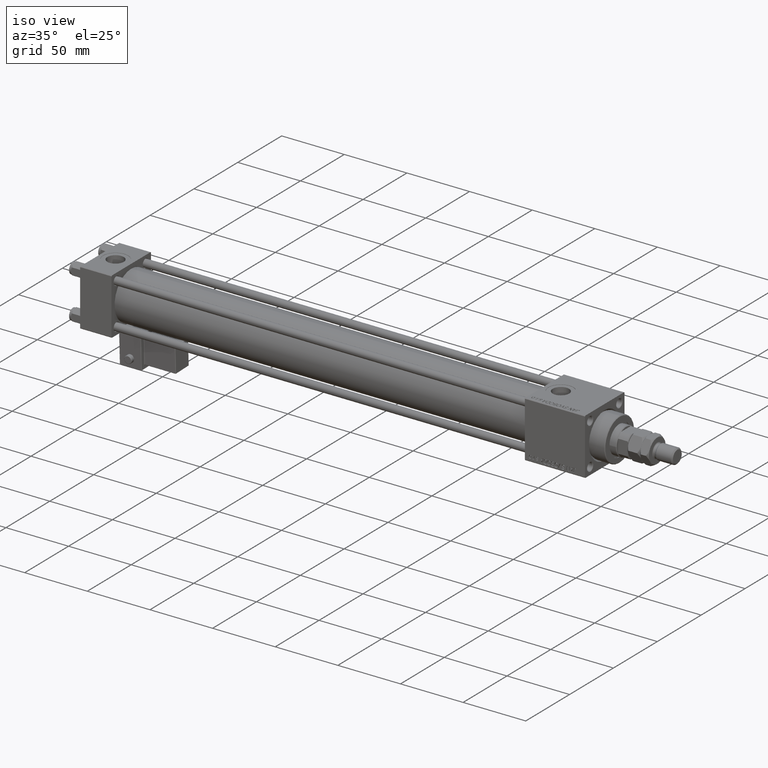
[diagram: clean part render]
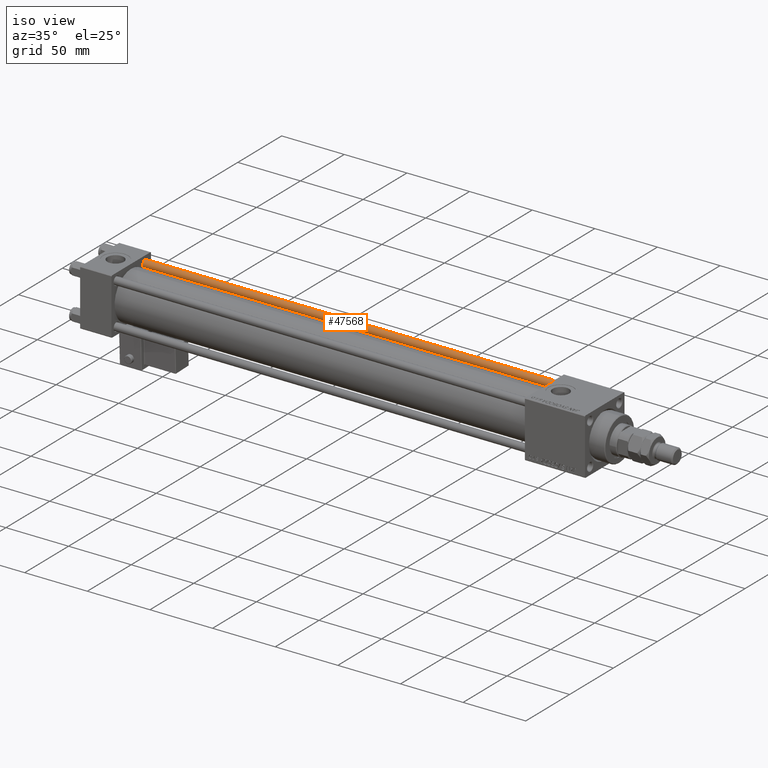
[diagram: same view with one face highlighted and labeled with its STEP entity id]
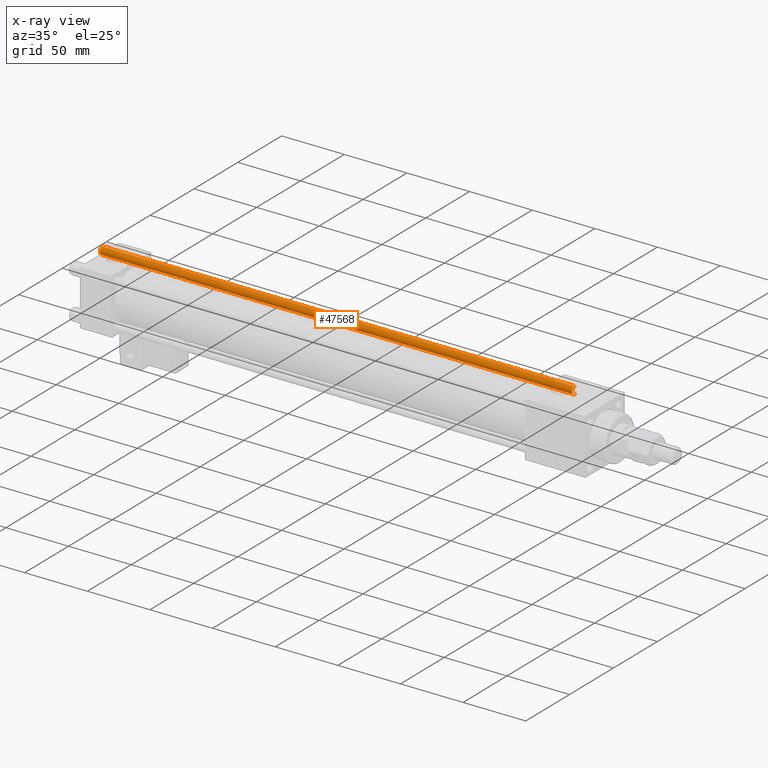
[diagram: x-ray of the same camera — body ghosted, the highlighted face saturated]
A machine part, iso view. The second image highlights one B-rep face of the part: STEP entity #47568.
The next image is the same camera in x-ray: the body ghosted, the highlighted face saturated — about 0% of this face is hidden behind the body in this view.
In plain terms, the highlighted cylindrical surface (edge-blend (fillet) strip) has radius 3 mm, axis along (-1, 0, 0).
Its self-contained STEP definition (entity closure, byte-faithful):
#1000 = EDGE_CURVE ( 'NONE', #7204, #50760, #46550, .T. ) ;
#6127 = CARTESIAN_POINT ( 'NONE',  ( 3.000000000000000444, 3.673940397442060361E-16, 0.5000000000000004441 ) ) ;
#6287 = DIRECTION ( 'NONE',  ( 1.000000000000000000, 0.000000000000000000, 0.000000000000000000 ) ) ;
#6753 = CARTESIAN_POINT ( 'NONE',  ( 0.000000000000000000, 0.000000000000000000, 378.0000000000000000 ) ) ;
#6938 = DIRECTION ( 'NONE',  ( 0.000000000000000000, 0.000000000000000000, -1.000000000000000000 ) ) ;
#7204 = VERTEX_POINT ( 'NONE', #51707 ) ;
#8622 = CARTESIAN_POINT ( 'NONE',  ( 3.000000000000000444, 3.673940397442060361E-16, 378.0000000000000000 ) ) ;
#11258 = VERTEX_POINT ( 'NONE', #19896 ) ;
#14582 = ORIENTED_EDGE ( 'NONE', *, *, #50864, .F. ) ;
#16534 = EDGE_LOOP ( 'NONE', ( #14582, #21054, #43148, #27705 ) ) ;
#17087 = LINE ( 'NONE', #8622, #51658 ) ;
#19896 = CARTESIAN_POINT ( 'NONE',  ( 3.000000000000000444, 3.673940397442060361E-16, 377.5000000000000000 ) ) ;
#21054 = ORIENTED_EDGE ( 'NONE', *, *, #50012, .T. ) ;
#23098 = DIRECTION ( 'NONE',  ( -1.000000000000000000, 0.000000000000000000, 0.000000000000000000 ) ) ;
#23179 = DIRECTION ( 'NONE',  ( -0.000000000000000000, -0.000000000000000000, 1.000000000000000000 ) ) ;
#25881 = AXIS2_PLACEMENT_3D ( 'NONE', #31636, #23179, #6287 ) ;
#27318 = FACE_OUTER_BOUND ( 'NONE', #16534, .T. ) ;
#27705 = ORIENTED_EDGE ( 'NONE', *, *, #1000, .T. ) ;
#31636 = CARTESIAN_POINT ( 'NONE',  ( 0.000000000000000000, 0.000000000000000000, 0.5000000000000004441 ) ) ;
#32020 = CARTESIAN_POINT ( 'NONE',  ( 0.000000000000000000, 0.000000000000000000, 377.5000000000000000 ) ) ;
#32826 = VERTEX_POINT ( 'NONE', #40720 ) ;
#35907 = EDGE_CURVE ( 'NONE', #32826, #7204, #47847, .T. ) ;
#36319 = AXIS2_PLACEMENT_3D ( 'NONE', #32020, #6938, #37054 ) ;
#37054 = DIRECTION ( 'NONE',  ( 1.000000000000000000, 0.000000000000000000, 0.000000000000000000 ) ) ;
#38486 = VECTOR ( 'NONE', #48129, 1000.000000000000000 ) ;
#40720 = CARTESIAN_POINT ( 'NONE',  ( -3.000000000000000444, 0.000000000000000000, 377.5000000000000000 ) ) ;
#43148 = ORIENTED_EDGE ( 'NONE', *, *, #35907, .T. ) ;
#43902 = CARTESIAN_POINT ( 'NONE',  ( -3.000000000000000444, 0.000000000000000000, 378.0000000000000000 ) ) ;
#45320 = DIRECTION ( 'NONE',  ( -0.000000000000000000, -0.000000000000000000, -1.000000000000000000 ) ) ;
#46087 = DIRECTION ( 'NONE',  ( -0.000000000000000000, -0.000000000000000000, -1.000000000000000000 ) ) ;
#46550 = CIRCLE ( 'NONE', #25881, 3.000000000000000444 ) ;
#47568 = ADVANCED_FACE ( 'NONE', ( #27318 ), #53248, .T. ) ;
#47847 = LINE ( 'NONE', #43902, #38486 ) ;
#48129 = DIRECTION ( 'NONE',  ( -0.000000000000000000, -0.000000000000000000, -1.000000000000000000 ) ) ;
#48906 = CIRCLE ( 'NONE', #36319, 3.000000000000000444 ) ;
#49712 = AXIS2_PLACEMENT_3D ( 'NONE', #6753, #45320, #23098 ) ;
#50012 = EDGE_CURVE ( 'NONE', #11258, #32826, #48906, .T. ) ;
#50760 = VERTEX_POINT ( 'NONE', #6127 ) ;
#50864 = EDGE_CURVE ( 'NONE', #11258, #50760, #17087, .T. ) ;
#51658 = VECTOR ( 'NONE', #46087, 1000.000000000000000 ) ;
#51707 = CARTESIAN_POINT ( 'NONE',  ( -3.000000000000000444, 0.000000000000000000, 0.5000000000000004441 ) ) ;
#53248 = CYLINDRICAL_SURFACE ( 'NONE', #49712, 3.000000000000000444 ) ;